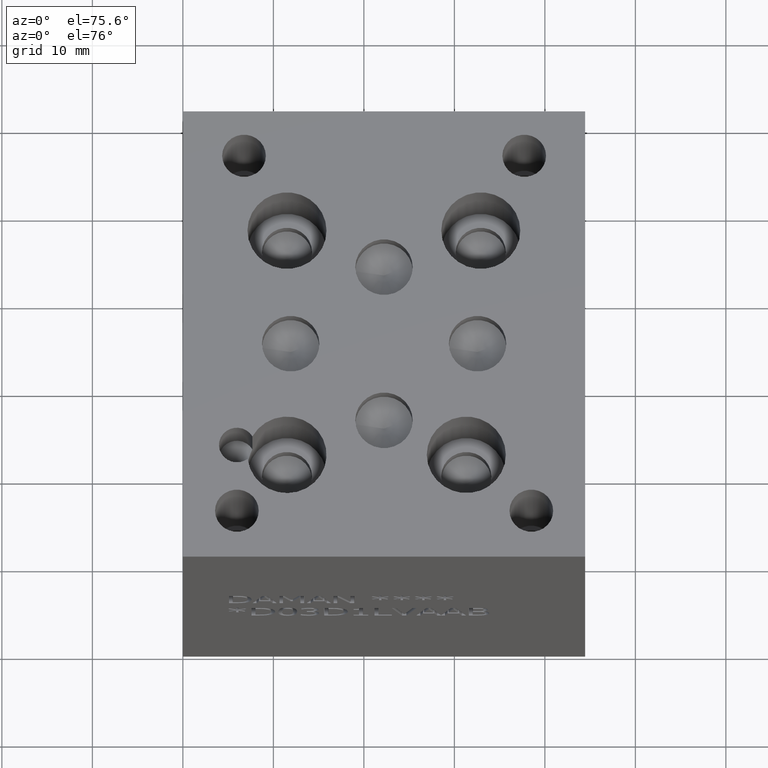
[diagram: clean part render]
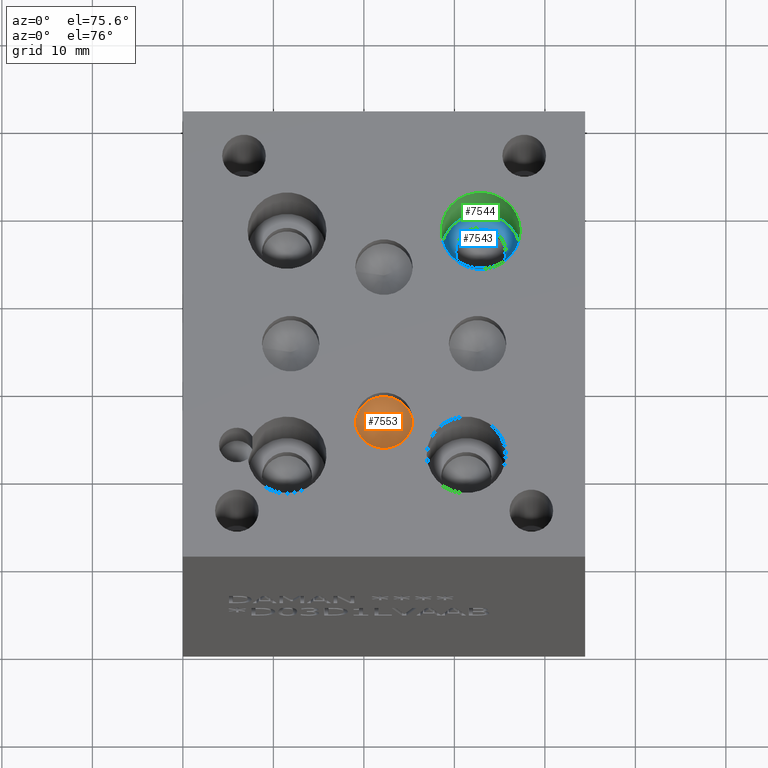
[diagram: same view with three faces highlighted in distinct colors, each labeled with its STEP entity id]
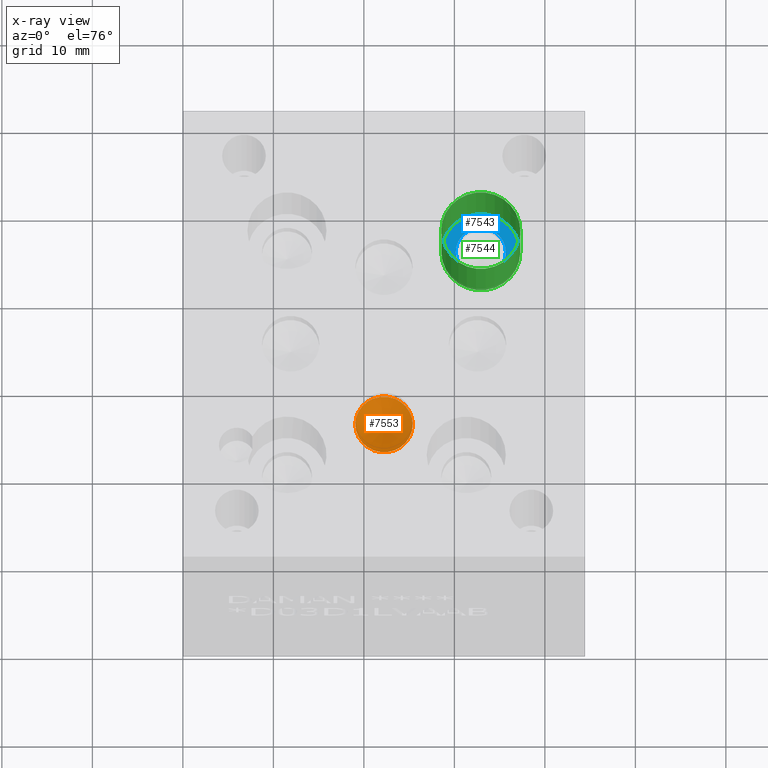
[diagram: x-ray of the same camera — body ghosted, the three highlighted faces saturated]
A machine part, auxiliary view with three faces highlighted in distinct colors.
The next image is the same camera in x-ray (body ghosted, the three faces saturated) — at least one of them is partly hidden behind the body in this view.
Their STEP definitions:

[orange] entity #7553 — the highlighted conical surface has half-angle 60 deg.
#29=CONICAL_SURFACE('',#7965,1.5875,1.0471975511966);
#121=CIRCLE('',#7966,3.175);
#122=CIRCLE('',#7967,3.175);
#804=FACE_OUTER_BOUND('',#1235,.T.);
#1235=EDGE_LOOP('',(#6501,#6502,#6503,#6504));
#2030=LINE('',#12589,#2808);
#2808=VECTOR('',#9524,1.5875);
#3508=VERTEX_POINT('',#12585);
#3509=VERTEX_POINT('',#12586);
#3510=VERTEX_POINT('',#12588);
#4525=EDGE_CURVE('',#3508,#3509,#121,.T.);
#4526=EDGE_CURVE('',#3509,#3510,#2030,.T.);
#4527=EDGE_CURVE('',#3509,#3508,#122,.T.);
#6501=ORIENTED_EDGE('',*,*,#4525,.T.);
#6502=ORIENTED_EDGE('',*,*,#4526,.T.);
#6503=ORIENTED_EDGE('',*,*,#4526,.F.);
#6504=ORIENTED_EDGE('',*,*,#4527,.T.);
#7553=ADVANCED_FACE('',(#804),#29,.F.);
#7965=AXIS2_PLACEMENT_3D('',#12584,#9520,#9521);
#7966=AXIS2_PLACEMENT_3D('',#12587,#9522,#9523);
#7967=AXIS2_PLACEMENT_3D('',#12590,#9525,#9526);
#9520=DIRECTION('center_axis',(0.,0.,1.));
#9521=DIRECTION('ref_axis',(1.,0.,0.));
#9522=DIRECTION('center_axis',(0.,0.,1.));
#9523=DIRECTION('ref_axis',(1.,0.,0.));
#9524=DIRECTION('',(0.866025403784439,1.06057523872491E-16,-0.5));
#9525=DIRECTION('center_axis',(0.,0.,1.));
#9526=DIRECTION('ref_axis',(1.,0.,0.));
#12584=CARTESIAN_POINT('Origin',(22.225,15.5448,41.7003664476615));
#12585=CARTESIAN_POINT('',(25.4,15.5448,42.61691));
#12586=CARTESIAN_POINT('',(19.05,15.5448,42.61691));
#12587=CARTESIAN_POINT('Origin',(22.225,15.5448,42.61691));
#12588=CARTESIAN_POINT('',(22.225,15.5448,40.7838228953229));
#12589=CARTESIAN_POINT('',(20.6375,15.5448,41.7003664476615));
#12590=CARTESIAN_POINT('Origin',(22.225,15.5448,42.61691));

[blue] entity #7543 — the highlighted planar face has unit normal (0, 0, 1).
#93=CIRCLE('',#7928,4.3688);
#94=CIRCLE('',#7929,4.3688);
#95=CIRCLE('',#7930,2.7686);
#210=FACE_BOUND('',#1213,.T.);
#794=FACE_OUTER_BOUND('',#1212,.T.);
#1212=EDGE_LOOP('',(#6429,#6430));
#1213=EDGE_LOOP('',(#6431));
#3476=VERTEX_POINT('',#12504);
#3477=VERTEX_POINT('',#12505);
#3478=VERTEX_POINT('',#12508);
#4486=EDGE_CURVE('',#3476,#3477,#93,.T.);
#4487=EDGE_CURVE('',#3477,#3476,#94,.T.);
#4488=EDGE_CURVE('',#3478,#3478,#95,.T.);
#6429=ORIENTED_EDGE('',*,*,#4486,.T.);
#6430=ORIENTED_EDGE('',*,*,#4487,.T.);
#6431=ORIENTED_EDGE('',*,*,#4488,.F.);
#6880=PLANE('',#7927);
#7543=ADVANCED_FACE('',(#794,#210),#6880,.T.);
#7927=AXIS2_PLACEMENT_3D('',#12503,#9433,#9434);
#7928=AXIS2_PLACEMENT_3D('',#12506,#9435,#9436);
#7929=AXIS2_PLACEMENT_3D('',#12507,#9437,#9438);
#7930=AXIS2_PLACEMENT_3D('',#12509,#9439,#9440);
#9433=DIRECTION('center_axis',(0.,0.,1.));
#9434=DIRECTION('ref_axis',(1.,0.,0.));
#9435=DIRECTION('center_axis',(0.,0.,1.));
#9436=DIRECTION('ref_axis',(1.,0.,0.));
#9437=DIRECTION('center_axis',(0.,0.,1.));
#9438=DIRECTION('ref_axis',(1.,0.,0.));
#9439=DIRECTION('center_axis',(0.,0.,1.));
#9440=DIRECTION('ref_axis',(1.,0.,0.));
#12503=CARTESIAN_POINT('Origin',(32.9184,37.1856,34.925));
#12504=CARTESIAN_POINT('',(37.2872,37.1856,34.925));
#12505=CARTESIAN_POINT('',(28.5496,37.1856,34.925));
#12506=CARTESIAN_POINT('Origin',(32.9184,37.1856,34.925));
#12507=CARTESIAN_POINT('Origin',(32.9184,37.1856,34.925));
#12508=CARTESIAN_POINT('',(30.1498,37.1856,34.925));
#12509=CARTESIAN_POINT('Origin',(32.9184,37.1856,34.925));

[green] entity #7544 — the highlighted cylindrical surface (bore or boss wall) has radius 4.3688 mm, axis along (0, 0, 1).
#93=CIRCLE('',#7928,4.3688);
#94=CIRCLE('',#7929,4.3688);
#96=CIRCLE('',#7932,4.3688);
#97=CIRCLE('',#7933,4.3688);
#159=CYLINDRICAL_SURFACE('',#7931,4.3688);
#795=FACE_OUTER_BOUND('',#1214,.T.);
#1214=EDGE_LOOP('',(#6432,#6433,#6434,#6435,#6436,#6437));
#2019=LINE('',#12515,#2797);
#2797=VECTOR('',#9447,4.3688);
#3476=VERTEX_POINT('',#12504);
#3477=VERTEX_POINT('',#12505);
#3479=VERTEX_POINT('',#12511);
#3480=VERTEX_POINT('',#12512);
#4486=EDGE_CURVE('',#3476,#3477,#93,.T.);
#4487=EDGE_CURVE('',#3477,#3476,#94,.T.);
#4489=EDGE_CURVE('',#3479,#3480,#96,.T.);
#4490=EDGE_CURVE('',#3480,#3479,#97,.T.);
#4491=EDGE_CURVE('',#3480,#3477,#2019,.T.);
#6432=ORIENTED_EDGE('',*,*,#4489,.F.);
#6433=ORIENTED_EDGE('',*,*,#4490,.F.);
#6434=ORIENTED_EDGE('',*,*,#4491,.T.);
#6435=ORIENTED_EDGE('',*,*,#4486,.F.);
#6436=ORIENTED_EDGE('',*,*,#4487,.F.);
#6437=ORIENTED_EDGE('',*,*,#4491,.F.);
#7544=ADVANCED_FACE('',(#795),#159,.F.);
#7928=AXIS2_PLACEMENT_3D('',#12506,#9435,#9436);
#7929=AXIS2_PLACEMENT_3D('',#12507,#9437,#9438);
#7931=AXIS2_PLACEMENT_3D('',#12510,#9441,#9442);
#7932=AXIS2_PLACEMENT_3D('',#12513,#9443,#9444);
#7933=AXIS2_PLACEMENT_3D('',#12514,#9445,#9446);
#9435=DIRECTION('center_axis',(0.,0.,1.));
#9436=DIRECTION('ref_axis',(1.,0.,0.));
#9437=DIRECTION('center_axis',(0.,0.,1.));
#9438=DIRECTION('ref_axis',(1.,0.,0.));
#9441=DIRECTION('center_axis',(0.,0.,1.));
#9442=DIRECTION('ref_axis',(1.,0.,0.));
#9443=DIRECTION('center_axis',(0.,0.,-1.));
#9444=DIRECTION('ref_axis',(1.,0.,0.));
#9445=DIRECTION('center_axis',(0.,0.,-1.));
#9446=DIRECTION('ref_axis',(1.,0.,0.));
#9447=DIRECTION('',(0.,0.,-1.));
#12504=CARTESIAN_POINT('',(37.2872,37.1856,34.925));
#12505=CARTESIAN_POINT('',(28.5496,37.1856,34.925));
#12506=CARTESIAN_POINT('Origin',(32.9184,37.1856,34.925));
#12507=CARTESIAN_POINT('Origin',(32.9184,37.1856,34.925));
#12510=CARTESIAN_POINT('Origin',(32.9184,37.1856,39.6875));
#12511=CARTESIAN_POINT('',(37.2872,37.1856,44.45));
#12512=CARTESIAN_POINT('',(28.5496,37.1856,44.45));
#12513=CARTESIAN_POINT('Origin',(32.9184,37.1856,44.45));
#12514=CARTESIAN_POINT('Origin',(32.9184,37.1856,44.45));
#12515=CARTESIAN_POINT('',(28.5496,37.1856,39.6875));